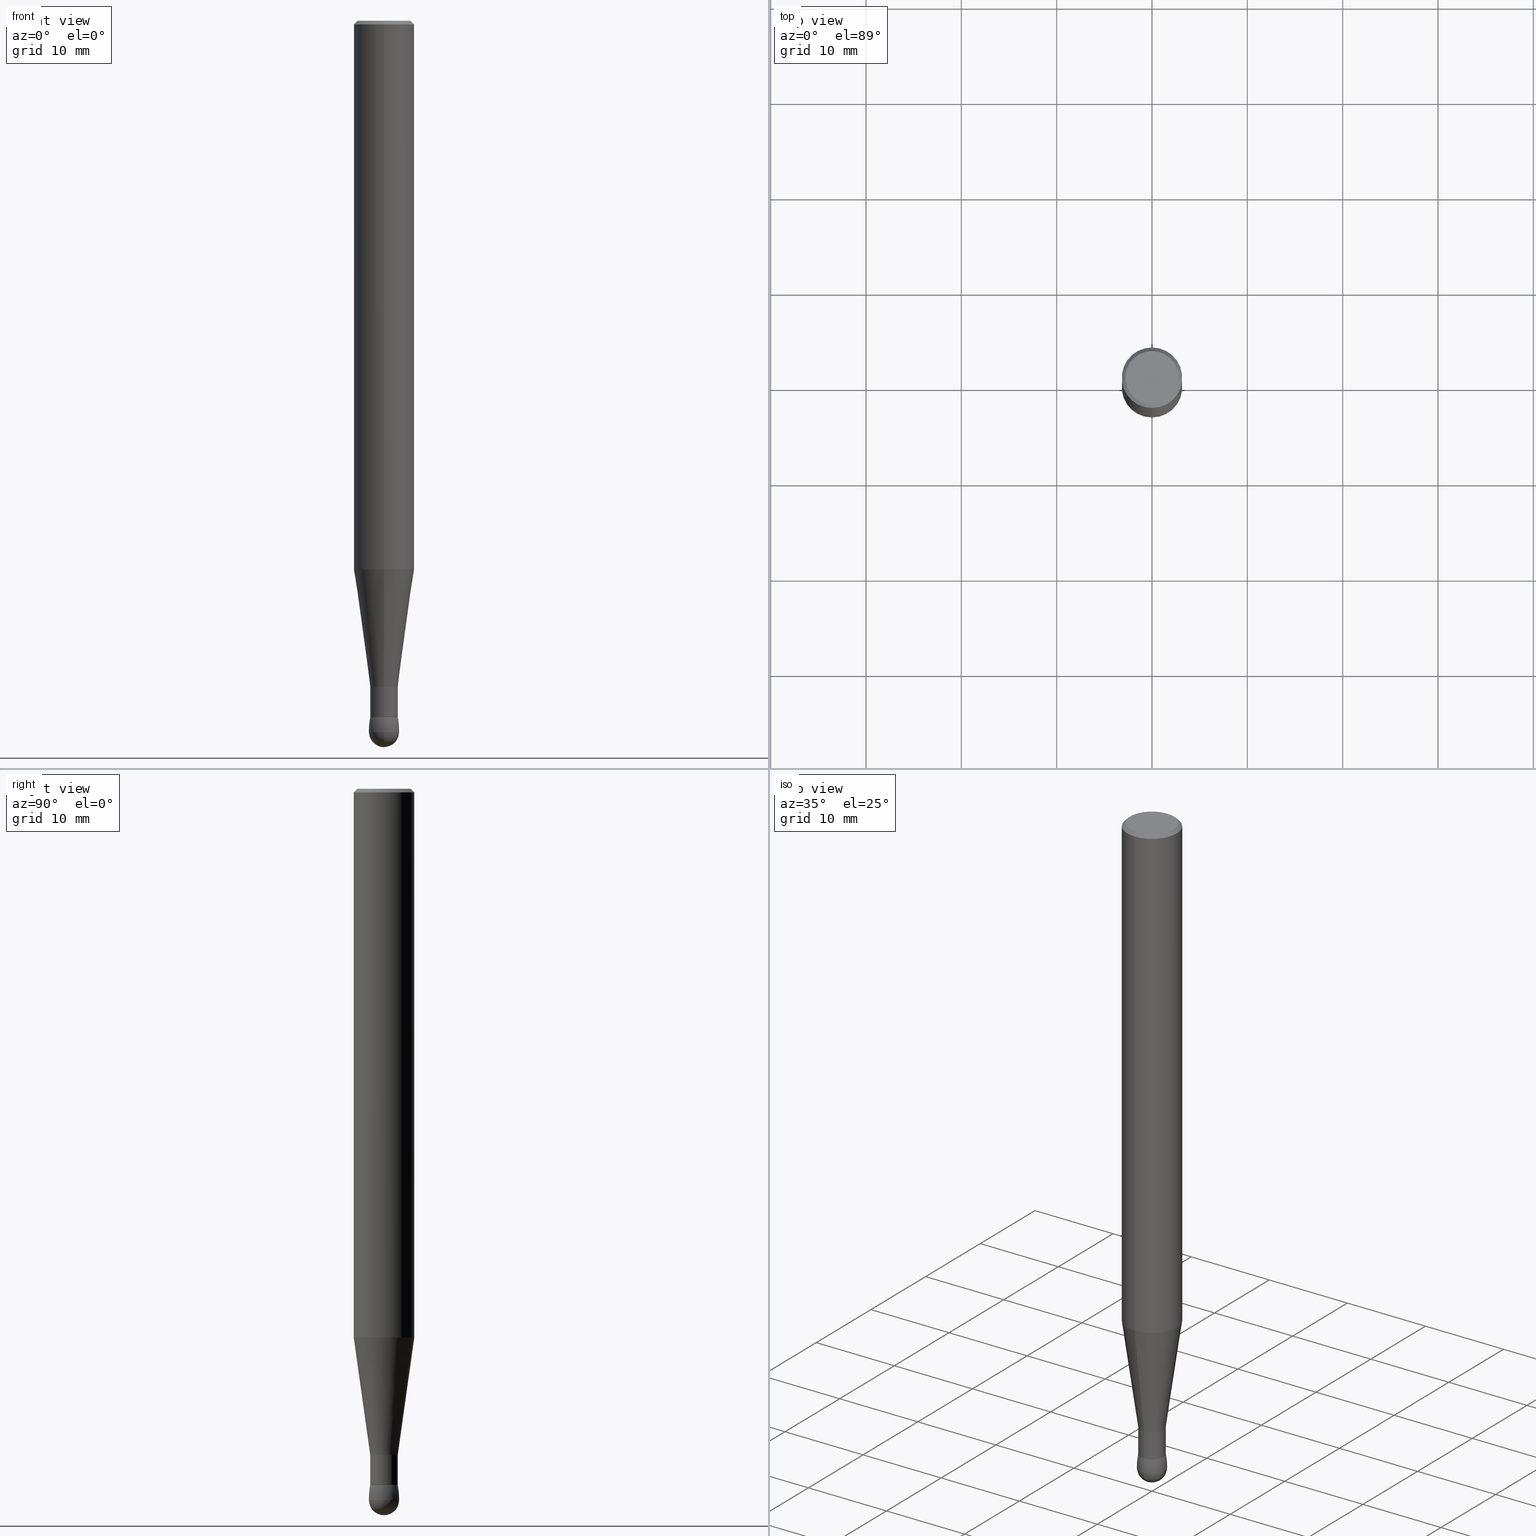
[diagram: canonical four-view strip — front | top / right | iso, engineering-drawing reading convention]
A machine part, canonical four-view strip (front | top / right | iso — engineering-drawing reading convention). The complete STEP part file that produces these views, byte-faithful:
ISO-10303-21;
HEADER;
FILE_DESCRIPTION (( 'STEP AP203' ),
    '1' );
FILE_NAME ('93275.STEP',
    '2024-02-29T19:22:06',
    ( '' ),
    ( '' ),
    'SwSTEP 2.0',
    'SolidWorks 2023',
    '' );
FILE_SCHEMA (( 'CONFIG_CONTROL_DESIGN' ));
ENDSEC;

DATA;
#1 = CIRCLE ( 'NONE', #103, 0.1249999999999996531 ) ;
#2 = CIRCLE ( 'NONE', #442, 0.3578636363636304996 ) ;
#3 = FACE_OUTER_BOUND ( 'NONE', #421, .T. ) ;
#4 = SECURITY_CLASSIFICATION ( '', '', #398 ) ;
#5 = CARTESIAN_POINT ( 'NONE',  ( 6.717350156635112977E-29, -9.612584853908374683E-15, -2.750000000000000000 ) ) ;
#6 = CARTESIAN_POINT ( 'NONE',  ( 3.980288726281912154E-16, 0.05699999999999049577, -2.875000000000000444 ) ) ;
#7 = ADVANCED_FACE ( 'NONE', ( #89 ), #188, .T. ) ;
#8 = DIRECTION ( 'NONE',  ( -1.000000000000000000, 6.982962677686265922E-15, -4.883557194083113462E-29 ) ) ;
#9 = ORIENTED_EDGE ( 'NONE', *, *, #96, .F. ) ;
#10 = CIRCLE ( 'NONE', #279, 0.05700000000000052941 ) ;
#11 = AXIS2_PLACEMENT_3D ( 'NONE', #200, #55, #278 ) ;
#12 = DIRECTION ( 'NONE',  ( 6.982962677686265922E-15, 1.000000000000000000, 0.000000000000000000 ) ) ;
#13 = CARTESIAN_POINT ( 'NONE',  ( 3.664009176346352619E-31, -5.243228102131736927E-17, -0.01499999999999970281 ) ) ;
#14 = CARTESIAN_POINT ( 'NONE',  ( 8.881784197001776916E-16, 0.1249999999999917011, -2.266154858877881928 ) ) ;
#15 = ORIENTED_EDGE ( 'NONE', *, *, #406, .F. ) ;
#16 = ORIENTED_EDGE ( 'NONE', *, *, #397, .T. ) ;
#17 = CARTESIAN_POINT ( 'NONE',  ( 6.717350156635112977E-29, -9.612584853908374683E-15, -2.750000000000000000 ) ) ;
#18 = CIRCLE ( 'NONE', #356, 0.1249999999999996531 ) ;
#19 = CLOSED_SHELL ( 'NONE', ( #244, #300, #225, #38, #249, #7, #461, #58, #133, #226, #432, #353 ) ) ;
#20 = CYLINDRICAL_SURFACE ( 'NONE', #355, 0.05700000000000054329 ) ;
#21 = MECHANICAL_CONTEXT ( 'NONE', #91, 'mechanical' ) ;
#22 = PERSON_AND_ORGANIZATION ( #41, #455 ) ;
#23 = CIRCLE ( 'NONE', #294, 0.06249999999999984041 ) ;
#24 = EDGE_CURVE ( 'NONE', #223, #439, #378, .T. ) ;
#25 = PERSON_AND_ORGANIZATION_ROLE ( 'creator' ) ;
#26 = ORIENTED_EDGE ( 'NONE', *, *, #115, .T. ) ;
#27 = AXIS2_PLACEMENT_3D ( 'NONE', #213, #29, #282 ) ;
#28 = DIRECTION ( 'NONE',  ( 6.982962677686265922E-15, 1.000000000000000000, 0.000000000000000000 ) ) ;
#29 = DIRECTION ( 'NONE',  ( 0.000000000000000000, 0.000000000000000000, 1.000000000000000000 ) ) ;
#30 = ORIENTED_EDGE ( 'NONE', *, *, #492, .T. ) ;
#31 = CYLINDRICAL_SURFACE ( 'NONE', #434, 0.1249999999999996253 ) ;
#32 = EDGE_LOOP ( 'NONE', ( #15, #416, #488, #176 ) ) ;
#33 = CARTESIAN_POINT ( 'NONE',  ( -8.061085147381519885E-16, -0.1099999999999995981, 3.845033941563335417E-16 ) ) ;
#34 = VECTOR ( 'NONE', #53, 39.37007874015748854 ) ;
#35 = ORIENTED_EDGE ( 'NONE', *, *, #317, .T. ) ;
#36 = DIRECTION ( 'NONE',  ( 2.442672784230950021E-29, -3.495485401421227157E-15, -1.000000000000000000 ) ) ;
#37 = LOCAL_TIME ( 14, 22, 6.000000000000000000, #438 ) ;
#38 = ADVANCED_FACE ( 'NONE', ( #3 ), #52, .T. ) ;
#39 = ORIENTED_EDGE ( 'NONE', *, *, #274, .T. ) ;
#40 = CARTESIAN_POINT ( 'NONE',  ( 7.931968274520512464E-29, -9.621565541511668795E-15, -2.999999999999999556 ) ) ;
#41 = PERSON ( 'UNSPECIFIED', 'UNSPECIFIED', 'UNSPECIFIED', ('UNSPECIFIED'), ('UNSPECIFIED'), ('UNSPECIFIED') ) ;
#42 = LINE ( 'NONE', #149, #203 ) ;
#43 = AXIS2_PLACEMENT_3D ( 'NONE', #445, #483, #290 ) ;
#44 = ADVANCED_FACE ( 'NONE', ( #466 ), #130, .T. ) ;
#45 = DIRECTION ( 'NONE',  ( -5.864194172962310300E-29, -1.404327968145636951E-15, 1.000000000000000000 ) ) ;
#46 = PRODUCT ( '93275', '93275', '', ( #21 ) ) ;
#47 = EDGE_CURVE ( 'NONE', #252, #93, #263, .T. ) ;
#48 = DIRECTION ( 'NONE',  ( 6.982962677686265922E-15, 1.000000000000000000, 0.000000000000000000 ) ) ;
#49 = DIRECTION ( 'NONE',  ( -6.982962677686265922E-15, -1.000000000000000000, 0.000000000000000000 ) ) ;
#50 = EDGE_CURVE ( 'NONE', #136, #331, #451, .T. ) ;
#51 = CIRCLE ( 'NONE', #275, 0.05690000000000053348 ) ;
#52 = CYLINDRICAL_SURFACE ( 'NONE', #76, 0.05700000000000054329 ) ;
#53 = DIRECTION ( 'NONE',  ( -9.718405697420266345E-16, -0.1391731009600623570, 0.9902680687415706950 ) ) ;
#54 =( NAMED_UNIT ( * ) PLANE_ANGLE_UNIT ( ) SI_UNIT ( $, .RADIAN. ) );
#55 = DIRECTION ( 'NONE',  ( 2.442672784230950021E-29, -3.495485401421227157E-15, -1.000000000000000000 ) ) ;
#56 = ORIENTED_EDGE ( 'NONE', *, *, #429, .T. ) ;
#57 = AXIS2_PLACEMENT_3D ( 'NONE', #474, #164, #314 ) ;
#58 = ADVANCED_FACE ( 'NONE', ( #158 ), #410, .T. ) ;
#59 = CIRCLE ( 'NONE', #443, 0.05690000000000053348 ) ;
#60 = CARTESIAN_POINT ( 'NONE',  ( -8.728703347107258506E-16, -0.1250000000000076050, -2.266154858877880596 ) ) ;
#61 = CARTESIAN_POINT ( 'NONE',  ( 7.562783744056684232E-29, -9.713163060768106455E-15, -2.937500000000000000 ) ) ;
#62 = DATE_AND_TIME ( #209, #297 ) ;
#63 = APPLICATION_PROTOCOL_DEFINITION ( 'international standard', 'config_control_design', 1994, #193 ) ;
#64 = ORIENTED_EDGE ( 'NONE', *, *, #358, .T. ) ;
#65 = CONICAL_SURFACE ( 'NONE', #327, 0.1249999999999995837, 0.7853981633974579379 ) ;
#66 = DIRECTION ( 'NONE',  ( 6.982962677686265922E-15, 1.000000000000000000, 0.000000000000000000 ) ) ;
#67 = LOCAL_TIME ( 14, 22, 6.000000000000000000, #166 ) ;
#68 = PERSON_AND_ORGANIZATION ( #41, #455 ) ;
#69 = ORIENTED_EDGE ( 'NONE', *, *, #84, .F. ) ;
#70 = DIRECTION ( 'NONE',  ( 2.442672784230950021E-29, -3.495485401421227157E-15, -1.000000000000000000 ) ) ;
#71 = ORIENTED_EDGE ( 'NONE', *, *, #24, .T. ) ;
#72 = CARTESIAN_POINT ( 'NONE',  ( 5.535474798633730122E-29, -7.921311226567415248E-15, -2.266154858877881484 ) ) ;
#73 = ORIENTED_EDGE ( 'NONE', *, *, #175, .F. ) ;
#74 = DIRECTION ( 'NONE',  ( -6.982962677686265922E-15, -1.000000000000000000, 0.000000000000000000 ) ) ;
#75 = ADVANCED_FACE ( 'NONE', ( #307 ), #340, .T. ) ;
#76 = AXIS2_PLACEMENT_3D ( 'NONE', #230, #197, #337 ) ;
#77 = EDGE_LOOP ( 'NONE', ( #64, #56 ) ) ;
#78 = DIRECTION ( 'NONE',  ( 2.442672784230950021E-29, -3.495485401421227157E-15, -1.000000000000000000 ) ) ;
#79 = ORIENTED_EDGE ( 'NONE', *, *, #232, .F. ) ;
#80 = DIRECTION ( 'NONE',  ( 2.442672784230950021E-29, -3.495485401421227157E-15, -1.000000000000000000 ) ) ;
#81 = ORIENTED_EDGE ( 'NONE', *, *, #429, .F. ) ;
#82 = VECTOR ( 'NONE', #95, 39.37007874015748143 ) ;
#83 = AXIS2_PLACEMENT_3D ( 'NONE', #87, #384, #150 ) ;
#84 = EDGE_CURVE ( 'NONE', #480, #252, #152, .T. ) ;
#85 = LINE ( 'NONE', #464, #219 ) ;
#86 = ORIENTED_EDGE ( 'NONE', *, *, #47, .F. ) ;
#87 = CARTESIAN_POINT ( 'NONE',  ( 7.562783744056684232E-29, -9.713163060768106455E-15, -2.937500000000000000 ) ) ;
#88 = CARTESIAN_POINT ( 'NONE',  ( -6.354496036693893351E-16, -0.05700000000001013978, -2.750000000000000000 ) ) ;
#89 = FACE_OUTER_BOUND ( 'NONE', #119, .T. ) ;
#90 = ADVANCED_FACE ( 'NONE', ( #459 ), #463, .F. ) ;
#91 = APPLICATION_CONTEXT ( 'configuration controlled 3d designs of mechanical parts and assemblies' ) ;
#92 = DIRECTION ( 'NONE',  ( 2.442672784230950021E-29, -3.495485401421227157E-15, -1.000000000000000000 ) ) ;
#93 = VERTEX_POINT ( 'NONE', #157 ) ;
#94 = APPROVAL_PERSON_ORGANIZATION ( #68, #100, #484 ) ;
#95 = DIRECTION ( 'NONE',  ( 2.442672784230950021E-29, -3.495485401421227157E-15, -1.000000000000000000 ) ) ;
#96 = EDGE_CURVE ( 'NONE', #452, #425, #18, .T. ) ;
#97 = APPLICATION_PROTOCOL_DEFINITION ( 'international standard', 'config_control_design', 1994, #91 ) ;
#98 = AXIS2_PLACEMENT_3D ( 'NONE', #330, #210, #364 ) ;
#99 = PERSON_AND_ORGANIZATION ( #41, #455 ) ;
#100 = APPROVAL ( #174, 'UNSPECIFIED' ) ;
#101 = CALENDAR_DATE ( 2024, 29, 2 ) ;
#102 = COORDINATED_UNIVERSAL_TIME_OFFSET ( 5, 0, .BEHIND. ) ;
#103 = AXIS2_PLACEMENT_3D ( 'NONE', #72, #78, #224 ) ;
#104 = ORIENTED_EDGE ( 'NONE', *, *, #481, .F. ) ;
#105 = DIRECTION ( 'NONE',  ( 2.442672784230950021E-29, -3.495485401421227157E-15, -1.000000000000000000 ) ) ;
#106 = MANIFOLD_SOLID_BREP ( 'Body-Move/Copy2[2]', #19 ) ;
#107 = EDGE_LOOP ( 'NONE', ( #216, #111 ) ) ;
#108 = CARTESIAN_POINT ( 'NONE',  ( 6.717350156635112977E-29, -9.612584853908374683E-15, -2.750000000000000000 ) ) ;
#109 = ORIENTED_EDGE ( 'NONE', *, *, #260, .T. ) ;
#110 = DIRECTION ( 'NONE',  ( 6.982962677686265133E-15, 1.000000000000000000, -3.500180241882349094E-15 ) ) ;
#111 = ORIENTED_EDGE ( 'NONE', *, *, #414, .F. ) ;
#112 = DIRECTION ( 'NONE',  ( 2.442672784230950021E-29, -3.495485401421227157E-15, -1.000000000000000000 ) ) ;
#113 = ORIENTED_EDGE ( 'NONE', *, *, #277, .F. ) ;
#114 = FACE_OUTER_BOUND ( 'NONE', #240, .T. ) ;
#115 = EDGE_CURVE ( 'NONE', #179, #136, #42, .T. ) ;
#116 = CARTESIAN_POINT ( 'NONE',  ( 7.389196390474125913E-29, -9.961750031076927469E-15, -2.937500000000000444 ) ) ;
#117 = CARTESIAN_POINT ( 'NONE',  ( 6.465938895417527815E-16, 0.05699999999999091904, -2.750000000000000000 ) ) ;
#118 = DESIGN_CONTEXT ( 'detailed design', #193, 'design' ) ;
#119 = EDGE_LOOP ( 'NONE', ( #482, #238, #408, #39 ) ) ;
#120 = CIRCLE ( 'NONE', #394, 0.06250000000000008327 ) ;
#121 = CONICAL_SURFACE ( 'NONE', #11, 0.1249999999999995837, 0.7853981633974579379 ) ;
#122 = DIRECTION ( 'NONE',  ( 6.982962677686265922E-15, 1.000000000000000000, -4.370956789862832982E-15 ) ) ;
#123 = DIRECTION ( 'NONE',  ( 5.024295867793423488E-15, 0.7071067811873045228, 0.7071067811857905117 ) ) ;
#124 = CC_DESIGN_APPROVAL ( #268, ( #448 ) ) ;
#125 = DIRECTION ( 'NONE',  ( 4.937700262164594585E-15, 0.7071067811865517916, -0.7071067811865430208 ) ) ;
#126 = DIRECTION ( 'NONE',  ( 5.864194172962310300E-29, 1.404327968145636951E-15, -1.000000000000000000 ) ) ;
#127 = AXIS2_PLACEMENT_3D ( 'NONE', #139, #105, #450 ) ;
#128 = EDGE_LOOP ( 'NONE', ( #374, #295, #206, #227 ) ) ;
#129 = EDGE_CURVE ( 'NONE', #366, #439, #371, .T. ) ;
#130 = TOROIDAL_SURFACE ( 'NONE', #302, -0.2953636363636302775, 0.3578636363636304996 ) ;
#131 = APPROVAL_ROLE ( '' ) ;
#132 = PERSON_AND_ORGANIZATION ( #41, #455 ) ;
#133 = ADVANCED_FACE ( 'NONE', ( #265 ), #339, .T. ) ;
#134 = LINE ( 'NONE', #284, #360 ) ;
#135 = DATE_AND_TIME ( #243, #348 ) ;
#136 = VERTEX_POINT ( 'NONE', #190 ) ;
#137 = CIRCLE ( 'NONE', #473, 0.05700000000000056410 ) ;
#138 = ORIENTED_EDGE ( 'NONE', *, *, #414, .T. ) ;
#139 = CARTESIAN_POINT ( 'NONE',  ( 0.000000000000000000, 0.000000000000000000, 0.000000000000000000 ) ) ;
#140 = CC_DESIGN_DATE_AND_TIME_ASSIGNMENT ( #357, #359, ( #4 ) ) ;
#141 = CC_DESIGN_APPROVAL ( #211, ( #4 ) ) ;
#142 = VERTEX_POINT ( 'NONE', #117 ) ;
#143 = CARTESIAN_POINT ( 'NONE',  ( -8.575622497214381912E-16, -0.1249999999999996392, -0.01499999999999926566 ) ) ;
#144 = ORIENTED_EDGE ( 'NONE', *, *, #317, .F. ) ;
#145 = DIRECTION ( 'NONE',  ( -6.982962677686265922E-15, -1.000000000000000000, 0.000000000000000000 ) ) ;
#146 = CC_DESIGN_PERSON_AND_ORGANIZATION_ASSIGNMENT ( #242, #207, ( #465 ) ) ;
#147 = ORIENTED_EDGE ( 'NONE', *, *, #304, .F. ) ;
#148 = CARTESIAN_POINT ( 'NONE',  ( 7.022684254663981800E-29, -1.004952052908603202E-14, -2.875000000000000444 ) ) ;
#149 = CARTESIAN_POINT ( 'NONE',  ( 8.728703347107806764E-16, 0.1249999999999995420, -0.01500000000000014169 ) ) ;
#150 = DIRECTION ( 'NONE',  ( -7.105427357601000281E-15, -1.000000000000000000, 0.000000000000000000 ) ) ;
#151 = DIRECTION ( 'NONE',  ( -6.982962677686266711E-15, -1.000000000000000000, -1.404327968145636951E-15 ) ) ;
#152 = LINE ( 'NONE', #301, #336 ) ;
#153 = DIRECTION ( 'NONE',  ( 2.442672784230950021E-29, -3.495485401421227157E-15, -1.000000000000000000 ) ) ;
#154 = ORIENTED_EDGE ( 'NONE', *, *, #24, .F. ) ;
#155 = CIRCLE ( 'NONE', #218, 0.05700000000000053635 ) ;
#156 = CLOSED_SHELL ( 'NONE', ( #44, #75, #186, #368, #90 ) ) ;
#157 = CARTESIAN_POINT ( 'NONE',  ( 3.980288726281913140E-16, 0.05699999999999051659, -2.874900000000000677 ) ) ;
#158 = FACE_OUTER_BOUND ( 'NONE', #32, .T. ) ;
#159 = CARTESIAN_POINT ( 'NONE',  ( 7.022684254663981800E-29, -1.004952052908603202E-14, -2.875000000000000444 ) ) ;
#160 = DIRECTION ( 'NONE',  ( 7.105427357601001070E-15, 1.000000000000000000, 0.000000000000000000 ) ) ;
#161 = CIRCLE ( 'NONE', #189, 0.05700000000000053635 ) ;
#162 = AXIS2_PLACEMENT_3D ( 'NONE', #346, #299, #191 ) ;
#163 = EDGE_CURVE ( 'NONE', #480, #446, #59, .T. ) ;
#164 = DIRECTION ( 'NONE',  ( -1.000000000000000000, 6.982962677686265922E-15, -4.883557194083113462E-29 ) ) ;
#165 = DIRECTION ( 'NONE',  ( -5.864194172962310300E-29, -1.404327968145636951E-15, 1.000000000000000000 ) ) ;
#166 = COORDINATED_UNIVERSAL_TIME_OFFSET ( 5, 0, .BEHIND. ) ;
#167 = VECTOR ( 'NONE', #453, 39.37007874015748143 ) ;
#168 = PERSON_AND_ORGANIZATION ( #41, #455 ) ;
#169 = DIRECTION ( 'NONE',  ( 1.000000000000000000, -6.982962677686265922E-15, 4.883557194083113462E-29 ) ) ;
#170 = APPROVAL_PERSON_ORGANIZATION ( #316, #211, #281 ) ;
#171 = PERSON_AND_ORGANIZATION ( #41, #455 ) ;
#172 = ORIENTED_EDGE ( 'NONE', *, *, #397, .F. ) ;
#173 = LINE ( 'NONE', #440, #418 ) ;
#174 = APPROVAL_STATUS ( 'not_yet_approved' ) ;
#175 = EDGE_CURVE ( 'NONE', #223, #366, #23, .T. ) ;
#176 = ORIENTED_EDGE ( 'NONE', *, *, #47, .T. ) ;
#177 = DIRECTION ( 'NONE',  ( -6.982962677686265922E-15, -1.000000000000000000, 3.495485401421227157E-15 ) ) ;
#178 = AXIS2_PLACEMENT_3D ( 'NONE', #5, #343, #236 ) ;
#179 = VERTEX_POINT ( 'NONE', #433 ) ;
#180 = PLANE ( 'NONE',  #427 ) ;
#181 = ORIENTED_EDGE ( 'NONE', *, *, #283, .F. ) ;
#182 = DIRECTION ( 'NONE',  ( -5.864194172962310300E-29, -1.404327968145636951E-15, 1.000000000000000000 ) ) ;
#183 = EDGE_CURVE ( 'NONE', #142, #452, #134, .T. ) ;
#184 = ORIENTED_EDGE ( 'NONE', *, *, #315, .T. ) ;
#185 = CYLINDRICAL_SURFACE ( 'NONE', #401, 0.1249999999999996253 ) ;
#186 = ADVANCED_FACE ( 'NONE', ( #201 ), #311, .T. ) ;
#187 = EDGE_LOOP ( 'NONE', ( #431, #250, #493, #86 ) ) ;
#188 = CONICAL_SURFACE ( 'NONE', #178, 0.05700000000000052941, 0.1396263401595467524 ) ;
#189 = AXIS2_PLACEMENT_3D ( 'NONE', #276, #165, #345 ) ;
#190 = CARTESIAN_POINT ( 'NONE',  ( 8.728703347107806764E-16, 0.1249999999999995420, -0.01500000000000014169 ) ) ;
#191 = DIRECTION ( 'NONE',  ( 6.982962677686265922E-15, 1.000000000000000000, 0.000000000000000000 ) ) ;
#192 = DIRECTION ( 'NONE',  ( 6.982962677686265133E-15, 1.000000000000000000, -3.500180241882349094E-15 ) ) ;
#193 = APPLICATION_CONTEXT ( 'configuration controlled 3d designs of mechanical parts and assemblies' ) ;
#194 = CARTESIAN_POINT ( 'NONE',  ( -4.440892098499875265E-16, -0.06250000000000979772, -2.937500000000000444 ) ) ;
#195 = AXIS2_PLACEMENT_3D ( 'NONE', #116, #298, #49 ) ;
#196 = AXIS2_PLACEMENT_3D ( 'NONE', #386, #202, #309 ) ;
#197 = DIRECTION ( 'NONE',  ( 2.442672784230950021E-29, -3.495485401421227157E-15, -1.000000000000000000 ) ) ;
#198 = ORIENTED_EDGE ( 'NONE', *, *, #481, .T. ) ;
#199 = CC_DESIGN_PERSON_AND_ORGANIZATION_ASSIGNMENT ( #132, #205, ( #46 ) ) ;
#200 = CARTESIAN_POINT ( 'NONE',  ( 3.664009176346352619E-31, -5.243228102131736927E-17, -0.01499999999999970281 ) ) ;
#201 = FACE_OUTER_BOUND ( 'NONE', #369, .T. ) ;
#202 = DIRECTION ( 'NONE',  ( -1.000000000000000000, 6.982962677686265922E-15, -4.883557194083113462E-29 ) ) ;
#203 = VECTOR ( 'NONE', #125, 39.37007874015748854 ) ;
#204 = CARTESIAN_POINT ( 'NONE',  ( -3.976797244941664481E-16, -0.05690000000001058100, -2.875000000000000444 ) ) ;
#205 = PERSON_AND_ORGANIZATION_ROLE ( 'design_owner' ) ;
#206 = ORIENTED_EDGE ( 'NONE', *, *, #96, .T. ) ;
#207 = PERSON_AND_ORGANIZATION_ROLE ( 'creator' ) ;
#208 = VECTOR ( 'NONE', #153, 39.37007874015748143 ) ;
#209 = CALENDAR_DATE ( 2024, 29, 2 ) ;
#210 = DIRECTION ( 'NONE',  ( 2.442672784230950021E-29, -3.495485401421227157E-15, -1.000000000000000000 ) ) ;
#211 = APPROVAL ( #476, 'UNSPECIFIED' ) ;
#212 = APPROVAL_PERSON_ORGANIZATION ( #171, #268, #131 ) ;
#213 = CARTESIAN_POINT ( 'NONE',  ( 0.000000000000000000, 0.000000000000000000, 0.000000000000000000 ) ) ;
#214 = ORIENTED_EDGE ( 'NONE', *, *, #175, .T. ) ;
#215 = DIRECTION ( 'NONE',  ( -5.864194172962310300E-29, -1.404327968145636951E-15, 1.000000000000000000 ) ) ;
#216 = ORIENTED_EDGE ( 'NONE', *, *, #260, .F. ) ;
#217 = CARTESIAN_POINT ( 'NONE',  ( 7.022439987385559914E-29, -1.004917098054588995E-14, -2.874900000000000677 ) ) ;
#218 = AXIS2_PLACEMENT_3D ( 'NONE', #373, #182, #145 ) ;
#219 = VECTOR ( 'NONE', #123, 39.37007874015748143 ) ;
#220 = ORIENTED_EDGE ( 'NONE', *, *, #232, .T. ) ;
#221 = DIRECTION ( 'NONE',  ( 6.982962677686265922E-15, 1.000000000000000000, -4.370956789862834560E-15 ) ) ;
#222 = EDGE_CURVE ( 'NONE', #142, #382, #344, .T. ) ;
#223 = VERTEX_POINT ( 'NONE', #40 ) ;
#224 = DIRECTION ( 'NONE',  ( 6.982962677686265922E-15, 1.000000000000000000, -4.370956789862832982E-15 ) ) ;
#225 = ADVANCED_FACE ( 'NONE', ( #323 ), #477, .T. ) ;
#226 = ADVANCED_FACE ( 'NONE', ( #248 ), #180, .T. ) ;
#227 = ORIENTED_EDGE ( 'NONE', *, *, #362, .F. ) ;
#228 = CARTESIAN_POINT ( 'NONE',  ( -3.980288726280537071E-16, -0.05700000000001013978, -2.750000000000000000 ) ) ;
#229 = ORIENTED_EDGE ( 'NONE', *, *, #129, .F. ) ;
#230 = CARTESIAN_POINT ( 'NONE',  ( 7.022684254663981800E-29, -1.004952052908603202E-14, -2.875000000000000444 ) ) ;
#231 = CIRCLE ( 'NONE', #98, 0.1249999999999995837 ) ;
#232 = EDGE_CURVE ( 'NONE', #93, #252, #137, .T. ) ;
#233 = DIRECTION ( 'NONE',  ( 6.982962677686265922E-15, 1.000000000000000000, -3.495485401421227157E-15 ) ) ;
#234 = EDGE_LOOP ( 'NONE', ( #329, #342 ) ) ;
#235 = CARTESIAN_POINT ( 'NONE',  ( 7.562783744056684232E-29, -9.713163060768106455E-15, -2.937500000000000000 ) ) ;
#236 = DIRECTION ( 'NONE',  ( -6.982962677686265922E-15, -1.000000000000000000, 0.000000000000000000 ) ) ;
#237 = CARTESIAN_POINT ( 'NONE',  ( 4.046540880154511146E-16, 0.05689999999999048597, -2.875000000000000444 ) ) ;
#238 = ORIENTED_EDGE ( 'NONE', *, *, #361, .F. ) ;
#239 = AXIS2_PLACEMENT_3D ( 'NONE', #235, #8, #383 ) ;
#240 = EDGE_LOOP ( 'NONE', ( #350, #184, #9, #172 ) ) ;
#241 = AXIS2_PLACEMENT_3D ( 'NONE', #17, #36, #251 ) ;
#242 = PERSON_AND_ORGANIZATION ( #41, #455 ) ;
#243 = CALENDAR_DATE ( 2024, 29, 2 ) ;
#244 = ADVANCED_FACE ( 'NONE', ( #114 ), #185, .T. ) ;
#245 = AXIS2_PLACEMENT_3D ( 'NONE', #266, #422, #306 ) ;
#246 = APPROVAL_DATE_TIME ( #62, #268 ) ;
#247 = ORIENTED_EDGE ( 'NONE', *, *, #222, .T. ) ;
#248 = FACE_OUTER_BOUND ( 'NONE', #107, .T. ) ;
#249 = ADVANCED_FACE ( 'NONE', ( #413 ), #312, .T. ) ;
#250 = ORIENTED_EDGE ( 'NONE', *, *, #361, .T. ) ;
#251 = DIRECTION ( 'NONE',  ( 6.982962677686265922E-15, 1.000000000000000000, 0.000000000000000000 ) ) ;
#252 = VERTEX_POINT ( 'NONE', #370 ) ;
#253 = CARTESIAN_POINT ( 'NONE',  ( 7.022684254663981800E-29, -1.004952052908603202E-14, -2.875000000000000444 ) ) ;
#254 = AXIS2_PLACEMENT_3D ( 'NONE', #456, #258, #305 ) ;
#255 = ORIENTED_EDGE ( 'NONE', *, *, #358, .F. ) ;
#256 = CARTESIAN_POINT ( 'NONE',  ( 6.717350156635112977E-29, -9.612584853908374683E-15, -2.750000000000000000 ) ) ;
#257 = EDGE_LOOP ( 'NONE', ( #113, #291, #220, #69 ) ) ;
#258 = DIRECTION ( 'NONE',  ( -2.442672784230950021E-29, 3.495485401421227157E-15, 1.000000000000000000 ) ) ;
#259 = LINE ( 'NONE', #6, #377 ) ;
#260 = EDGE_CURVE ( 'NONE', #179, #289, #328, .T. ) ;
#261 = PRODUCT_DEFINITION_SHAPE ( 'NONE', 'NONE',  #448 ) ;
#262 = DIRECTION ( 'NONE',  ( -6.982962677686266711E-15, -1.000000000000000000, -1.404327968145636951E-15 ) ) ;
#263 = CIRCLE ( 'NONE', #162, 0.05700000000000056410 ) ;
#264 = ORIENTED_EDGE ( 'NONE', *, *, #454, .T. ) ;
#265 = FACE_OUTER_BOUND ( 'NONE', #234, .T. ) ;
#266 = CARTESIAN_POINT ( 'NONE',  ( 0.000000000000000000, 0.000000000000000000, 0.000000000000000000 ) ) ;
#267 = MANIFOLD_SOLID_BREP ( 'Body-Move/Copy2[1]', #156 ) ;
#268 = APPROVAL ( #396, 'UNSPECIFIED' ) ;
#269 = CARTESIAN_POINT ( 'NONE',  ( 3.973305763604225154E-16, 0.05689999999999048597, -2.875000000000000444 ) ) ;
#270 =( LENGTH_UNIT ( ) NAMED_UNIT ( * ) SI_UNIT ( $, .METRE. ) );
#271 = DIRECTION ( 'NONE',  ( 6.982962677686265922E-15, 1.000000000000000000, 1.404327968145636951E-15 ) ) ;
#272 = DIMENSIONAL_EXPONENTS ( 1.000000000000000000, 0.000000000000000000, 0.000000000000000000, 0.000000000000000000, 0.000000000000000000, 0.000000000000000000, 0.000000000000000000 ) ;
#273 =( CONVERSION_BASED_UNIT ( 'INCH', #475 ) LENGTH_UNIT ( ) NAMED_UNIT ( #272 ) );
#274 = EDGE_CURVE ( 'NONE', #425, #452, #1, .T. ) ;
#275 = AXIS2_PLACEMENT_3D ( 'NONE', #148, #334, #66 ) ;
#276 = CARTESIAN_POINT ( 'NONE',  ( 7.022684254663985163E-29, -1.004952052908603202E-14, -2.875000000000000888 ) ) ;
#277 = EDGE_CURVE ( 'NONE', #446, #480, #51, .T. ) ;
#278 = DIRECTION ( 'NONE',  ( 6.982962677686265133E-15, 1.000000000000000000, -3.500180241882349094E-15 ) ) ;
#279 = AXIS2_PLACEMENT_3D ( 'NONE', #256, #80, #467 ) ;
#280 =( GEOMETRIC_REPRESENTATION_CONTEXT ( 3 ) GLOBAL_UNCERTAINTY_ASSIGNED_CONTEXT ( ( #389 ) ) GLOBAL_UNIT_ASSIGNED_CONTEXT ( ( #273, #54, #430 ) ) REPRESENTATION_CONTEXT ( 'NONE', 'WORKASPACE' ) );
#281 = APPROVAL_ROLE ( '' ) ;
#282 = DIRECTION ( 'NONE',  ( 1.000000000000000000, 0.000000000000000000, 0.000000000000000000 ) ) ;
#283 = EDGE_CURVE ( 'NONE', #289, #331, #332, .T. ) ;
#284 = CARTESIAN_POINT ( 'NONE',  ( 4.050093593833279701E-16, 0.05699999999999091904, -2.750000000000000000 ) ) ;
#285 = ORIENTED_EDGE ( 'NONE', *, *, #304, .T. ) ;
#286 = DIRECTION ( 'NONE',  ( -6.982962677686265922E-15, -1.000000000000000000, 0.000000000000000000 ) ) ;
#287 = AXIS2_PLACEMENT_3D ( 'NONE', #13, #376, #192 ) ;
#288 = COORDINATED_UNIVERSAL_TIME_OFFSET ( 5, 0, .BEHIND. ) ;
#289 = VERTEX_POINT ( 'NONE', #33 ) ;
#290 = DIRECTION ( 'NONE',  ( -6.982962677686265922E-15, -1.000000000000000000, 0.000000000000000000 ) ) ;
#291 = ORIENTED_EDGE ( 'NONE', *, *, #406, .T. ) ;
#292 = ORIENTED_EDGE ( 'NONE', *, *, #454, .F. ) ;
#293 = CARTESIAN_POINT ( 'NONE',  ( 7.022684254663981800E-29, -1.004952052908603202E-14, -2.875000000000000444 ) ) ;
#294 = AXIS2_PLACEMENT_3D ( 'NONE', #61, #169, #320 ) ;
#295 = ORIENTED_EDGE ( 'NONE', *, *, #183, .T. ) ;
#296 = CARTESIAN_POINT ( 'NONE',  ( -8.575622497214381912E-16, -0.1249999999999996392, -0.01499999999999926566 ) ) ;
#297 = LOCAL_TIME ( 14, 22, 6.000000000000000000, #102 ) ;
#298 = DIRECTION ( 'NONE',  ( -5.864194172962310300E-29, -1.404327968145636951E-15, 1.000000000000000000 ) ) ;
#299 = DIRECTION ( 'NONE',  ( 2.442672784230950021E-29, -3.495485401421227157E-15, -1.000000000000000000 ) ) ;
#300 = ADVANCED_FACE ( 'NONE', ( #409 ), #65, .T. ) ;
#301 = CARTESIAN_POINT ( 'NONE',  ( -3.973305763602819995E-16, -0.05690000000001058100, -2.875000000000000444 ) ) ;
#302 = AXIS2_PLACEMENT_3D ( 'NONE', #379, #45, #262 ) ;
#303 = CARTESIAN_POINT ( 'NONE',  ( 8.728703347108507864E-16, 0.1249999999999895639, -2.875000000000000888 ) ) ;
#304 = EDGE_CURVE ( 'NONE', #331, #136, #231, .T. ) ;
#305 = DIRECTION ( 'NONE',  ( -6.982962677686265922E-15, -1.000000000000000000, 0.000000000000000000 ) ) ;
#306 = DIRECTION ( 'NONE',  ( 6.982962677686265922E-15, 1.000000000000000000, -3.495485401421226763E-15 ) ) ;
#307 = FACE_OUTER_BOUND ( 'NONE', #392, .T. ) ;
#308 = CARTESIAN_POINT ( 'NONE',  ( 4.245492846167346376E-16, 0.05699999999999048883, -2.875000000000000888 ) ) ;
#309 = DIRECTION ( 'NONE',  ( -6.982962677686265922E-15, -1.000000000000000000, 0.000000000000000000 ) ) ;
#310 = ORIENTED_EDGE ( 'NONE', *, *, #115, .F. ) ;
#311 = SPHERICAL_SURFACE ( 'NONE', #57, 0.06249999999999984041 ) ;
#312 = CONICAL_SURFACE ( 'NONE', #385, 0.05700000000000052941, 0.1396263401595467524 ) ;
#313 = CARTESIAN_POINT ( 'NONE',  ( -2.098684862258578515E-15, -0.2953636363636402140, -2.937499999999999112 ) ) ;
#314 = DIRECTION ( 'NONE',  ( 6.982962677686265922E-15, 1.000000000000000000, 0.000000000000000000 ) ) ;
#315 = EDGE_CURVE ( 'NONE', #331, #425, #173, .T. ) ;
#316 = PERSON_AND_ORGANIZATION ( #41, #455 ) ;
#317 = EDGE_CURVE ( 'NONE', #439, #366, #120, .T. ) ;
#318 = CC_DESIGN_PERSON_AND_ORGANIZATION_ASSIGNMENT ( #99, #25, ( #448 ) ) ;
#319 = PERSON_AND_ORGANIZATION_ROLE ( 'classification_officer' ) ;
#320 = DIRECTION ( 'NONE',  ( 6.982962677686265922E-15, 1.000000000000000000, 0.000000000000000000 ) ) ;
#321 = DATE_AND_TIME ( #403, #37 ) ;
#322 = ORIENTED_EDGE ( 'NONE', *, *, #283, .T. ) ;
#323 = FACE_OUTER_BOUND ( 'NONE', #257, .T. ) ;
#324 = DATE_TIME_ROLE ( 'creation_date' ) ;
#325 = ORIENTED_EDGE ( 'NONE', *, *, #129, .T. ) ;
#326 = DIRECTION ( 'NONE',  ( 6.982962677686265922E-15, 1.000000000000000000, -4.370956789862834560E-15 ) ) ;
#327 = AXIS2_PLACEMENT_3D ( 'NONE', #405, #112, #110 ) ;
#328 = CIRCLE ( 'NONE', #127, 0.1099999999999995981 ) ;
#329 = ORIENTED_EDGE ( 'NONE', *, *, #163, .T. ) ;
#330 = CARTESIAN_POINT ( 'NONE',  ( 3.664009176346352619E-31, -5.243228102131736927E-17, -0.01499999999999970281 ) ) ;
#331 = VERTEX_POINT ( 'NONE', #143 ) ;
#332 = LINE ( 'NONE', #296, #167 ) ;
#333 = EDGE_LOOP ( 'NONE', ( #35, #264, #255, #104 ) ) ;
#334 = DIRECTION ( 'NONE',  ( 2.442672784230950021E-29, -3.495485401421227157E-15, -1.000000000000000000 ) ) ;
#335 = CC_DESIGN_PERSON_AND_ORGANIZATION_ASSIGNMENT ( #168, #319, ( #4 ) ) ;
#336 = VECTOR ( 'NONE', #470, 39.37007874015748143 ) ;
#337 = DIRECTION ( 'NONE',  ( 6.982962677686265922E-15, 1.000000000000000000, 0.000000000000000000 ) ) ;
#338 = LOCAL_TIME ( 14, 22, 6.000000000000000000, #436 ) ;
#339 = PLANE ( 'NONE',  #462 ) ;
#340 = SPHERICAL_SURFACE ( 'NONE', #239, 0.06249999999999984041 ) ;
#341 = CARTESIAN_POINT ( 'NONE',  ( 7.398174034703618591E-29, -9.948893533564504275E-15, -2.937499999999998224 ) ) ;
#342 = ORIENTED_EDGE ( 'NONE', *, *, #277, .T. ) ;
#343 = DIRECTION ( 'NONE',  ( -2.442672784230950021E-29, 3.495485401421227157E-15, 1.000000000000000000 ) ) ;
#344 = CIRCLE ( 'NONE', #241, 0.05700000000000052941 ) ;
#345 = DIRECTION ( 'NONE',  ( -6.982962677686265922E-15, -1.000000000000000000, 0.000000000000000000 ) ) ;
#346 = CARTESIAN_POINT ( 'NONE',  ( 7.022439987385559914E-29, -1.004917098054588995E-14, -2.874900000000000677 ) ) ;
#347 = CARTESIAN_POINT ( 'NONE',  ( 4.364351673554661182E-16, 0.06249999999999011902, -2.937500000000000444 ) ) ;
#348 = LOCAL_TIME ( 14, 22, 6.000000000000000000, #288 ) ;
#349 = LINE ( 'NONE', #354, #82 ) ;
#350 = ORIENTED_EDGE ( 'NONE', *, *, #50, .T. ) ;
#351 = DIRECTION ( 'NONE',  ( 2.442672784230950021E-29, -3.495485401421227157E-15, -1.000000000000000000 ) ) ;
#352 = ORIENTED_EDGE ( 'NONE', *, *, #274, .F. ) ;
#353 = ADVANCED_FACE ( 'NONE', ( #367 ), #31, .T. ) ;
#354 = CARTESIAN_POINT ( 'NONE',  ( -3.910483858729107894E-16, -0.05700000000001059774, -2.875000000000000444 ) ) ;
#355 = AXIS2_PLACEMENT_3D ( 'NONE', #159, #351, #12 ) ;
#356 = AXIS2_PLACEMENT_3D ( 'NONE', #426, #92, #122 ) ;
#357 = DATE_AND_TIME ( #478, #67 ) ;
#358 = EDGE_CURVE ( 'NONE', #490, #415, #155, .T. ) ;
#359 = DATE_TIME_ROLE ( 'classification_date' ) ;
#360 = VECTOR ( 'NONE', #437, 39.37007874015748143 ) ;
#361 = EDGE_CURVE ( 'NONE', #382, #142, #10, .T. ) ;
#362 = EDGE_CURVE ( 'NONE', #382, #425, #424, .T. ) ;
#363 = DATE_AND_TIME ( #101, #338 ) ;
#364 = DIRECTION ( 'NONE',  ( 6.982962677686265133E-15, 1.000000000000000000, -3.500180241882349094E-15 ) ) ;
#365 = CC_DESIGN_SECURITY_CLASSIFICATION ( #4, ( #465 ) ) ;
#366 = VERTEX_POINT ( 'NONE', #347 ) ;
#367 = FACE_OUTER_BOUND ( 'NONE', #444, .T. ) ;
#368 = ADVANCED_FACE ( 'NONE', ( #471 ), #402, .T. ) ;
#369 = EDGE_LOOP ( 'NONE', ( #154, #214, #144 ) ) ;
#370 = CARTESIAN_POINT ( 'NONE',  ( -3.910483858729138462E-16, -0.05700000000001061162, -2.874900000000000677 ) ) ;
#371 = CIRCLE ( 'NONE', #195, 0.06250000000000008327 ) ;
#372 = EDGE_LOOP ( 'NONE', ( #109, #322, #412, #310 ) ) ;
#373 = CARTESIAN_POINT ( 'NONE',  ( 7.022684254663985163E-29, -1.004952052908603202E-14, -2.875000000000000888 ) ) ;
#374 = ORIENTED_EDGE ( 'NONE', *, *, #222, .F. ) ;
#375 = EDGE_CURVE ( 'NONE', #142, #93, #259, .T. ) ;
#376 = DIRECTION ( 'NONE',  ( 2.442672784230950021E-29, -3.495485401421227157E-15, -1.000000000000000000 ) ) ;
#377 = VECTOR ( 'NONE', #380, 39.37007874015748143 ) ;
#378 = CIRCLE ( 'NONE', #83, 0.06249999999999984041 ) ;
#379 = CARTESIAN_POINT ( 'NONE',  ( 7.398174034703618591E-29, -9.948893533564504275E-15, -2.937499999999998224 ) ) ;
#380 = DIRECTION ( 'NONE',  ( 2.442672784230950021E-29, -3.495485401421227157E-15, -1.000000000000000000 ) ) ;
#381 = DIRECTION ( 'NONE',  ( 2.442672784230950021E-29, -3.495485401421227157E-15, -1.000000000000000000 ) ) ;
#382 = VERTEX_POINT ( 'NONE', #88 ) ;
#383 = DIRECTION ( 'NONE',  ( 6.982962677686265922E-15, 1.000000000000000000, 0.000000000000000000 ) ) ;
#384 = DIRECTION ( 'NONE',  ( -1.000000000000000000, 7.105427357601001070E-15, -4.866359136571686874E-29 ) ) ;
#385 = AXIS2_PLACEMENT_3D ( 'NONE', #108, #486, #286 ) ;
#386 = CARTESIAN_POINT ( 'NONE',  ( 2.062513249073002321E-15, 0.2953636363636203410, -2.937499999999997780 ) ) ;
#387 = CIRCLE ( 'NONE', #245, 0.1099999999999995981 ) ;
#388 = CC_DESIGN_APPROVAL ( #100, ( #465 ) ) ;
#389 = UNCERTAINTY_MEASURE_WITH_UNIT (LENGTH_MEASURE( 1.000000000000000082E-05 ), #273, 'distance_accuracy_value', 'NONE');
#390 = DIRECTION ( 'NONE',  ( 1.000000000000000000, -7.105427357601001070E-15, 4.866359136571686874E-29 ) ) ;
#391 = PRODUCT_RELATED_PRODUCT_CATEGORY ( 'detail', '', ( #46 ) ) ;
#392 = EDGE_LOOP ( 'NONE', ( #73, #71, #229 ) ) ;
#393 = FACE_OUTER_BOUND ( 'NONE', #485, .T. ) ;
#394 = AXIS2_PLACEMENT_3D ( 'NONE', #407, #215, #74 ) ;
#395 = PERSON_AND_ORGANIZATION_ROLE ( 'design_supplier' ) ;
#396 = APPROVAL_STATUS ( 'not_yet_approved' ) ;
#397 = EDGE_CURVE ( 'NONE', #136, #452, #460, .T. ) ;
#398 = SECURITY_CLASSIFICATION_LEVEL ( 'unclassified' ) ;
#399 = DIRECTION ( 'NONE',  ( 2.442672784230950021E-29, -3.495485401421227157E-15, -1.000000000000000000 ) ) ;
#400 = AXIS2_PLACEMENT_3D ( 'NONE', #341, #457, #151 ) ;
#401 = AXIS2_PLACEMENT_3D ( 'NONE', #293, #399, #326 ) ;
#402 = TOROIDAL_SURFACE ( 'NONE', #400, -0.2953636363636302775, 0.3578636363636304996 ) ;
#403 = CALENDAR_DATE ( 2024, 29, 2 ) ;
#404 = ORIENTED_EDGE ( 'NONE', *, *, #375, .F. ) ;
#405 = CARTESIAN_POINT ( 'NONE',  ( 3.664009176346352619E-31, -5.243228102131736927E-17, -0.01499999999999970281 ) ) ;
#406 = EDGE_CURVE ( 'NONE', #446, #93, #85, .T. ) ;
#407 = CARTESIAN_POINT ( 'NONE',  ( 7.389196390474125913E-29, -9.961750031076927469E-15, -2.937500000000000444 ) ) ;
#408 = ORIENTED_EDGE ( 'NONE', *, *, #362, .T. ) ;
#409 = FACE_OUTER_BOUND ( 'NONE', #372, .T. ) ;
#410 = CONICAL_SURFACE ( 'NONE', #254, 0.05690000000000053348, 0.7853981633985154254 ) ;
#411 = CIRCLE ( 'NONE', #196, 0.3578636363636304996 ) ;
#412 = ORIENTED_EDGE ( 'NONE', *, *, #50, .F. ) ;
#413 = FACE_OUTER_BOUND ( 'NONE', #128, .T. ) ;
#414 = EDGE_CURVE ( 'NONE', #289, #179, #387, .T. ) ;
#415 = VERTEX_POINT ( 'NONE', #308 ) ;
#416 = ORIENTED_EDGE ( 'NONE', *, *, #163, .F. ) ;
#417 = DIRECTION ( 'NONE',  ( 2.442672784230950021E-29, -3.495485401421227157E-15, -1.000000000000000000 ) ) ;
#418 = VECTOR ( 'NONE', #70, 39.37007874015748143 ) ;
#419 = CARTESIAN_POINT ( 'NONE',  ( 7.022684254663981800E-29, -1.004952052908603202E-14, -2.875000000000000444 ) ) ;
#420 = EDGE_LOOP ( 'NONE', ( #292, #325, #198, #81 ) ) ;
#421 = EDGE_LOOP ( 'NONE', ( #247, #30, #79, #404 ) ) ;
#422 = DIRECTION ( 'NONE',  ( 2.442672784230950021E-29, -3.495485401421227157E-15, -1.000000000000000000 ) ) ;
#423 = CARTESIAN_POINT ( 'NONE',  ( 7.030722817782268837E-29, -1.003800884917404626E-14, -2.875000000000000444 ) ) ;
#424 = LINE ( 'NONE', #228, #34 ) ;
#425 = VERTEX_POINT ( 'NONE', #60 ) ;
#426 = CARTESIAN_POINT ( 'NONE',  ( 5.535474798633730122E-29, -7.921311226567415248E-15, -2.266154858877881484 ) ) ;
#427 = AXIS2_PLACEMENT_3D ( 'NONE', #447, #494, #177 ) ;
#428 = FACE_OUTER_BOUND ( 'NONE', #187, .T. ) ;
#429 = EDGE_CURVE ( 'NONE', #415, #490, #161, .T. ) ;
#430 =( NAMED_UNIT ( * ) SI_UNIT ( $, .STERADIAN. ) SOLID_ANGLE_UNIT ( ) );
#431 = ORIENTED_EDGE ( 'NONE', *, *, #492, .F. ) ;
#432 = ADVANCED_FACE ( 'NONE', ( #393 ), #121, .T. ) ;
#433 = CARTESIAN_POINT ( 'NONE',  ( 7.681258945454864194E-16, 0.1099999999999995981, -3.845033941563335417E-16 ) ) ;
#434 = AXIS2_PLACEMENT_3D ( 'NONE', #253, #491, #221 ) ;
#435 = APPROVAL_DATE_TIME ( #135, #100 ) ;
#436 = COORDINATED_UNIVERSAL_TIME_OFFSET ( 5, 0, .BEHIND. ) ;
#437 = DIRECTION ( 'NONE',  ( 9.888843590037935253E-16, 0.1391731009600692959, 0.9902680687415698069 ) ) ;
#438 = COORDINATED_UNIVERSAL_TIME_OFFSET ( 5, 0, .BEHIND. ) ;
#439 = VERTEX_POINT ( 'NONE', #194 ) ;
#440 = CARTESIAN_POINT ( 'NONE',  ( -8.575622497213685743E-16, -0.1250000000000096867, -2.875000000000000000 ) ) ;
#441 = CC_DESIGN_DATE_AND_TIME_ASSIGNMENT ( #321, #324, ( #448 ) ) ;
#442 = AXIS2_PLACEMENT_3D ( 'NONE', #313, #390, #160 ) ;
#443 = AXIS2_PLACEMENT_3D ( 'NONE', #419, #381, #48 ) ;
#444 = EDGE_LOOP ( 'NONE', ( #449, #285, #16, #352 ) ) ;
#445 = CARTESIAN_POINT ( 'NONE',  ( 7.022684254663981800E-29, -1.004952052908603202E-14, -2.875000000000000444 ) ) ;
#446 = VERTEX_POINT ( 'NONE', #237 ) ;
#447 = CARTESIAN_POINT ( 'NONE',  ( 7.681258945454864194E-16, 0.1099999999999995981, -3.838606675688333083E-16 ) ) ;
#448 = PRODUCT_DEFINITION ( 'UNKNOWN', '', #465, #118 ) ;
#449 = ORIENTED_EDGE ( 'NONE', *, *, #315, .F. ) ;
#450 = DIRECTION ( 'NONE',  ( 6.982962677686265922E-15, 1.000000000000000000, -3.495485401421226763E-15 ) ) ;
#451 = CIRCLE ( 'NONE', #287, 0.1249999999999995837 ) ;
#452 = VERTEX_POINT ( 'NONE', #14 ) ;
#453 = DIRECTION ( 'NONE',  ( -4.851104656541010818E-15, -0.7071067811865567876, -0.7071067811865382469 ) ) ;
#454 = EDGE_CURVE ( 'NONE', #366, #415, #2, .T. ) ;
#455 = ORGANIZATION ( 'UNSPECIFIED', 'UNSPECIFIED', '' ) ;
#456 = CARTESIAN_POINT ( 'NONE',  ( 7.022684254663981800E-29, -1.004952052908603202E-14, -2.875000000000000444 ) ) ;
#457 = DIRECTION ( 'NONE',  ( -5.864194172962310300E-29, -1.404327968145636951E-15, 1.000000000000000000 ) ) ;
#458 = ADVANCED_BREP_SHAPE_REPRESENTATION ( '93275', ( #267, #106, #27 ), #280 ) ;
#459 = FACE_OUTER_BOUND ( 'NONE', #77, .T. ) ;
#460 = LINE ( 'NONE', #303, #208 ) ;
#461 = ADVANCED_FACE ( 'NONE', ( #428 ), #20, .T. ) ;
#462 = AXIS2_PLACEMENT_3D ( 'NONE', #269, #417, #233 ) ;
#463 = PLANE ( 'NONE',  #487 ) ;
#464 = CARTESIAN_POINT ( 'NONE',  ( 4.042988166475710050E-16, 0.05689999999999048597, -2.875000000000000444 ) ) ;
#465 = PRODUCT_DEFINITION_FORMATION_WITH_SPECIFIED_SOURCE ( 'ANY', '', #46, .NOT_KNOWN. ) ;
#466 = FACE_OUTER_BOUND ( 'NONE', #333, .T. ) ;
#467 = DIRECTION ( 'NONE',  ( 6.982962677686265922E-15, 1.000000000000000000, 0.000000000000000000 ) ) ;
#468 = SHAPE_DEFINITION_REPRESENTATION ( #261, #458 ) ;
#469 = CC_DESIGN_PERSON_AND_ORGANIZATION_ASSIGNMENT ( #22, #395, ( #465 ) ) ;
#470 = DIRECTION ( 'NONE',  ( -4.937700262169816844E-15, -0.7071067811872996378, 0.7071067811857953966 ) ) ;
#471 = FACE_OUTER_BOUND ( 'NONE', #420, .T. ) ;
#472 = CARTESIAN_POINT ( 'NONE',  ( -3.980288726280506503E-16, -0.05700000000001058387, -2.875000000000000888 ) ) ;
#473 = AXIS2_PLACEMENT_3D ( 'NONE', #217, #489, #28 ) ;
#474 = CARTESIAN_POINT ( 'NONE',  ( 7.562783744056684232E-29, -9.713163060768106455E-15, -2.937500000000000000 ) ) ;
#475 = LENGTH_MEASURE_WITH_UNIT ( LENGTH_MEASURE( 0.02539999999999999897 ), #270 );
#476 = APPROVAL_STATUS ( 'not_yet_approved' ) ;
#477 = CONICAL_SURFACE ( 'NONE', #43, 0.05690000000000053348, 0.7853981633985154254 ) ;
#478 = CALENDAR_DATE ( 2024, 29, 2 ) ;
#479 = APPROVAL_DATE_TIME ( #363, #211 ) ;
#480 = VERTEX_POINT ( 'NONE', #204 ) ;
#481 = EDGE_CURVE ( 'NONE', #439, #490, #411, .T. ) ;
#482 = ORIENTED_EDGE ( 'NONE', *, *, #183, .F. ) ;
#483 = DIRECTION ( 'NONE',  ( -2.442672784230950021E-29, 3.495485401421227157E-15, 1.000000000000000000 ) ) ;
#484 = APPROVAL_ROLE ( '' ) ;
#485 = EDGE_LOOP ( 'NONE', ( #181, #138, #26, #147 ) ) ;
#486 = DIRECTION ( 'NONE',  ( -2.442672784230950021E-29, 3.495485401421227157E-15, 1.000000000000000000 ) ) ;
#487 = AXIS2_PLACEMENT_3D ( 'NONE', #423, #126, #271 ) ;
#488 = ORIENTED_EDGE ( 'NONE', *, *, #84, .T. ) ;
#489 = DIRECTION ( 'NONE',  ( 2.442672784230950021E-29, -3.495485401421227157E-15, -1.000000000000000000 ) ) ;
#490 = VERTEX_POINT ( 'NONE', #472 ) ;
#491 = DIRECTION ( 'NONE',  ( 2.442672784230950021E-29, -3.495485401421227157E-15, -1.000000000000000000 ) ) ;
#492 = EDGE_CURVE ( 'NONE', #382, #252, #349, .T. ) ;
#493 = ORIENTED_EDGE ( 'NONE', *, *, #375, .T. ) ;
#494 = DIRECTION ( 'NONE',  ( -2.442672784230950021E-29, 3.495485401421227157E-15, 1.000000000000000000 ) ) ;
ENDSEC;
END-ISO-10303-21;
